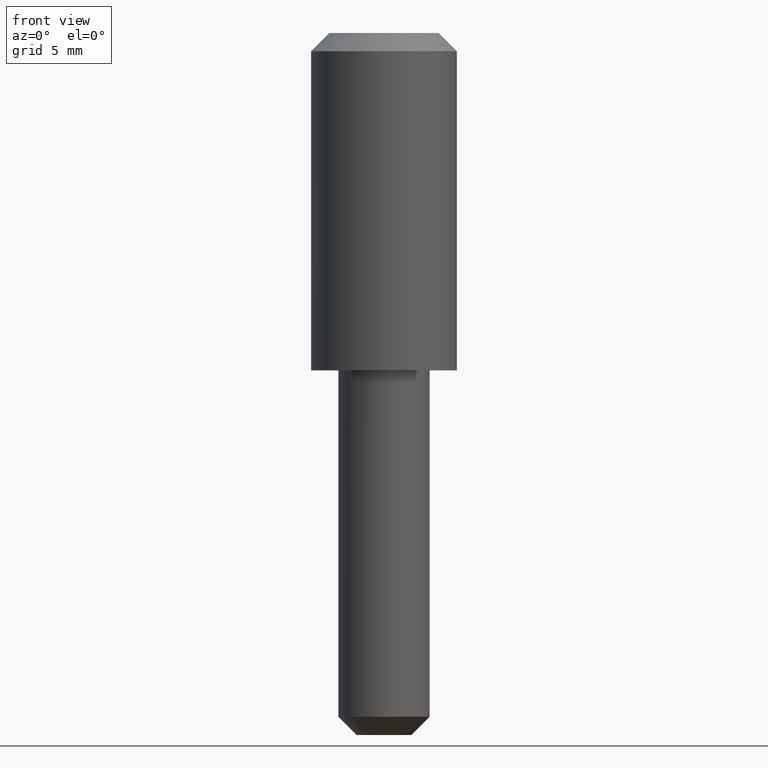
[diagram: clean part render]
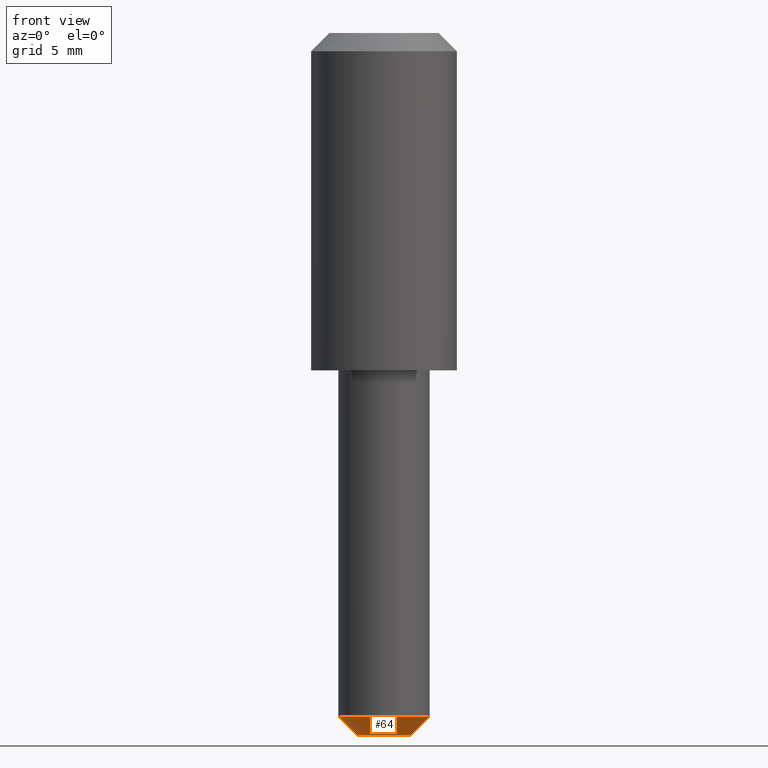
[diagram: same view with one face highlighted and labeled with its STEP entity id]
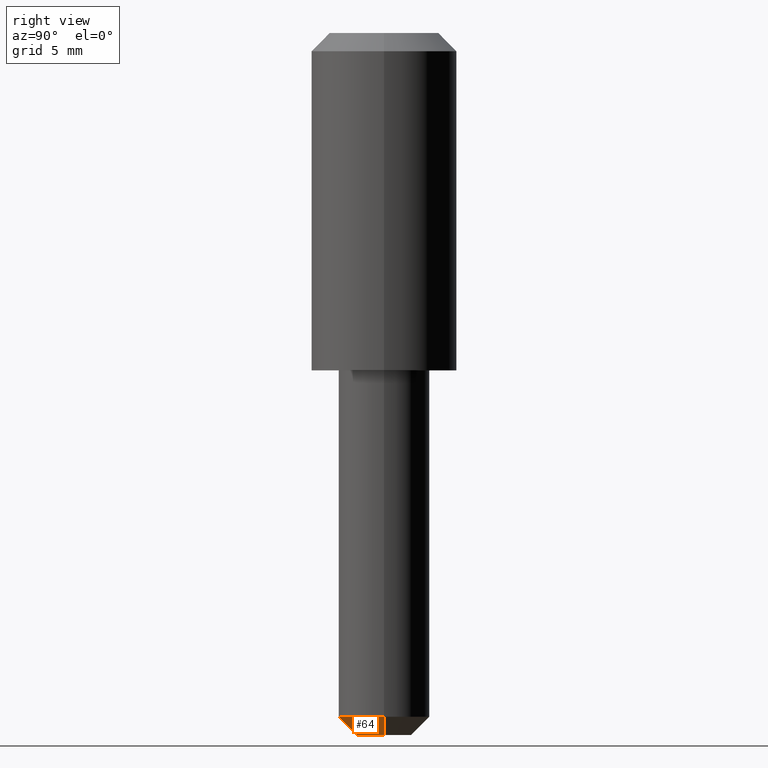
[diagram: same view with one face highlighted and labeled with its STEP entity id]
A machine part, front view. The second image highlights one B-rep face of the part: STEP entity #64.
A second angle (right view) of the same face is appended — the face is thin or edge-on in the first view.
In plain terms, the highlighted face is a freeform B-spline surface patch.
Its self-contained STEP definition (entity closure, byte-faithful):
#2=CARTESIAN_POINT('',(0.0,-2.632991E-015,-21.500000000000007));
#3=CARTESIAN_POINT('',(0.0,-2.632991E-015,-21.500000000000007));
#4=CARTESIAN_POINT('',(0.0,-2.632991E-015,-21.500000000000007));
#5=CARTESIAN_POINT('',(0.0,-2.632991E-015,-21.500000000000007));
#6=CARTESIAN_POINT('',(0.0,-2.632991E-015,-21.500000000000007));
#7=CARTESIAN_POINT('',(0.0,-2.632991E-015,-21.500000000000007));
#8=CARTESIAN_POINT('',(0.0,-2.632991E-015,-21.500000000000007));
#9=CARTESIAN_POINT('',(0.0,-2.632991E-015,-21.500000000000007));
#10=CARTESIAN_POINT('',(0.0,-2.632991E-015,-21.500000000000007));
#11=CARTESIAN_POINT('',(0.0,2.625000000000001,-18.875000000000000));
#12=CARTESIAN_POINT('',(-2.625000000000000,2.625000000000001,-18.875000000000000));
#13=CARTESIAN_POINT('',(-2.625000000000000,-2.311521E-015,-18.875000000000000));
#14=CARTESIAN_POINT('',(-2.625000000000000,-2.625000000000006,-18.875000000000000));
#15=CARTESIAN_POINT('',(0.0,-2.625000000000006,-18.875000000000000));
#16=CARTESIAN_POINT('',(2.625000000000000,-2.625000000000006,-18.875000000000000));
#17=CARTESIAN_POINT('',(2.625000000000000,-2.311521E-015,-18.875000000000000));
#18=CARTESIAN_POINT('',(2.625000000000000,2.625000000000001,-18.875000000000000));
#19=CARTESIAN_POINT('',(0.0,2.625000000000001,-18.875000000000000));
#27=(BOUNDED_SURFACE()B_SPLINE_SURFACE(2,1,((#2,#11),(#3,#12),(#4,#13),(#5,#14),(#6,#15),(#7,#16),(#8,#17),(#9,#18),(#10,#19)),.UNSPECIFIED.,.T.,.F.,.U.)B_SPLINE_SURFACE_WITH_KNOTS((3,2,2,2,3),(2,2),(0.0,0.250000000000000,0.500000000000000,0.750000000000000,1.0),(0.0,1.0),.UNSPECIFIED.)GEOMETRIC_REPRESENTATION_ITEM()RATIONAL_B_SPLINE_SURFACE(((1.0,1.0),(0.707106781186548,0.707106781186548),(1.0,1.0),(0.707106781186548,0.707106781186548),(1.0,1.0),(0.707106781186548,0.707106781186548),(1.0,1.0),(0.707106781186548,0.707106781186548),(1.0,1.0)))REPRESENTATION_ITEM('')SURFACE());
#28=CARTESIAN_POINT('',(1.500000000000000,-2.449294E-015,-20.0));
#29=VERTEX_POINT('',#28);
#30=CARTESIAN_POINT('',(-1.500000000000000,-2.449294E-015,-20.0));
#31=VERTEX_POINT('',#30);
#32=CARTESIAN_POINT('',(0.0,-2.449294E-015,-20.0));
#33=DIRECTION('',(0.0,-1.224647E-016,-1.0));
#34=DIRECTION('',(-1.0,0.0,0.0));
#35=AXIS2_PLACEMENT_3D('',#32,#33,#34);
#36=CIRCLE('',#35,1.500000000000001);
#37=EDGE_CURVE('',#29,#31,#36,.T.);
#38=ORIENTED_EDGE('',*,*,#37,.F.);
#39=CARTESIAN_POINT('',(2.500000000000000,-2.326829E-015,-19.0));
#40=VERTEX_POINT('',#39);
#41=CARTESIAN_POINT('',(1.500000000000000,-2.449294E-015,-20.0));
#42=DIRECTION('',(0.707106781186547,8.659561E-017,0.707106781186547));
#43=VECTOR('',#42,1.414213562373095);
#44=LINE('',#41,#43);
#45=EDGE_CURVE('',#29,#40,#44,.T.);
#46=ORIENTED_EDGE('',*,*,#45,.T.);
#47=CARTESIAN_POINT('',(-2.500000000000000,-2.326829E-015,-19.0));
#48=VERTEX_POINT('',#47);
#49=CARTESIAN_POINT('',(0.0,-2.326829E-015,-19.0));
#50=DIRECTION('',(0.0,1.224647E-016,1.0));
#51=DIRECTION('',(-1.0,0.0,0.0));
#52=AXIS2_PLACEMENT_3D('',#49,#50,#51);
#53=CIRCLE('',#52,2.500000000000003);
#54=EDGE_CURVE('',#48,#40,#53,.T.);
#55=ORIENTED_EDGE('',*,*,#54,.F.);
#56=CARTESIAN_POINT('',(-1.500000000000000,-2.449294E-015,-20.0));
#57=DIRECTION('',(-0.707106781186547,8.659561E-017,0.707106781186547));
#58=VECTOR('',#57,1.414213562373095);
#59=LINE('',#56,#58);
#60=EDGE_CURVE('',#31,#48,#59,.T.);
#61=ORIENTED_EDGE('',*,*,#60,.F.);
#62=EDGE_LOOP('',(#38,#46,#55,#61));
#63=FACE_OUTER_BOUND('',#62,.T.);
#64=ADVANCED_FACE('',(#63),#27,.T.);